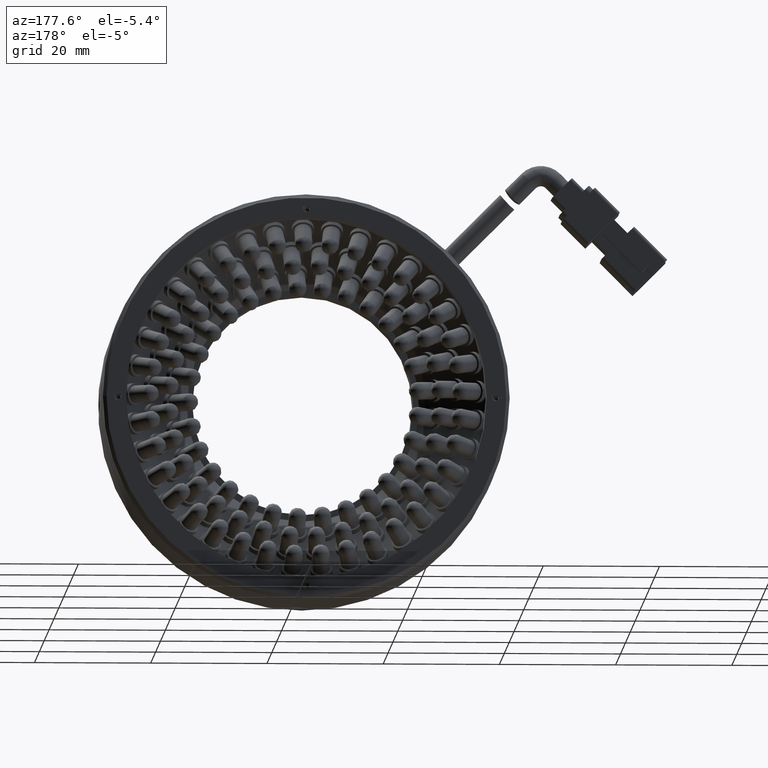
[diagram: clean part render]
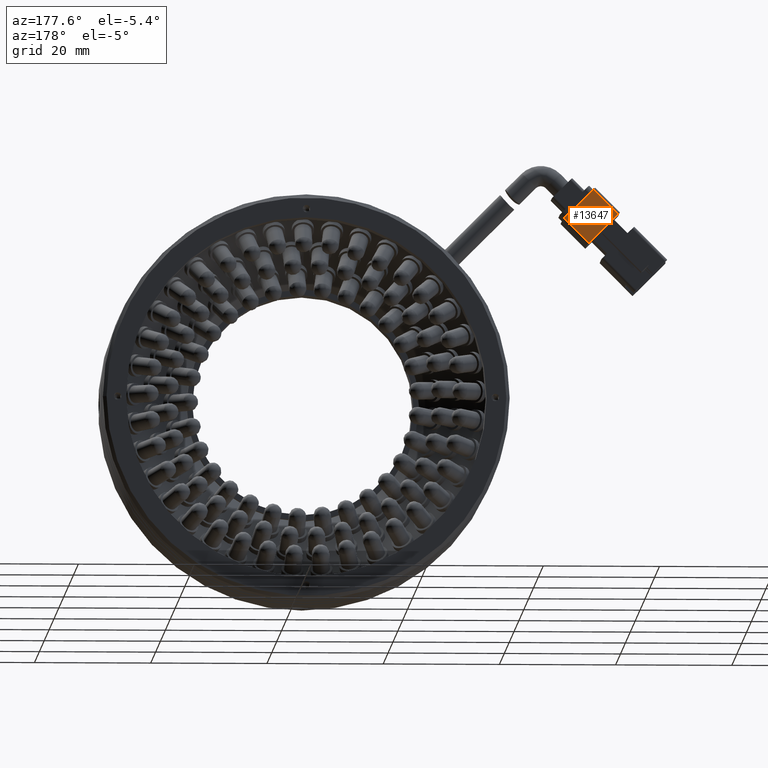
[diagram: same view with one face highlighted and labeled with its STEP entity id]
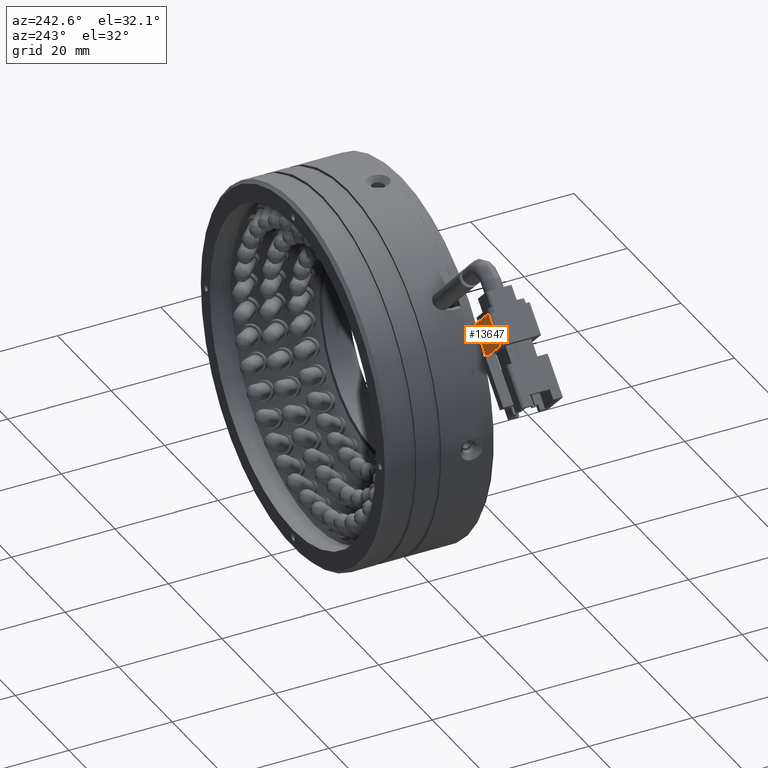
[diagram: same view with one face highlighted and labeled with its STEP entity id]
A machine part, auxiliary view. The second image highlights one B-rep face of the part: STEP entity #13647.
A second angle (auxiliary view) of the same face is appended — the face is thin or edge-on in the first view.
In plain terms, the highlighted planar face has unit normal (0, -1, -0).
Its self-contained STEP definition (entity closure, byte-faithful):
#2886 = EDGE_CURVE ( 'NONE', #16995, #65265, #22355, .T. ) ;
#5720 = DIRECTION ( 'NONE',  ( -0.7071067811865440200, -1.502354214089055400E-016, 0.7071067811865511300 ) ) ;
#6294 = FACE_OUTER_BOUND ( 'NONE', #29763, .T. ) ;
#7867 = LINE ( 'NONE', #59689, #43464 ) ;
#8014 = VECTOR ( 'NONE', #5720, 999.9999999999998900 ) ;
#13647 = ADVANCED_FACE ( 'NONE', ( #6294 ), #55900, .F. ) ;
#16995 = VERTEX_POINT ( 'NONE', #27875 ) ;
#20152 = ORIENTED_EDGE ( 'NONE', *, *, #56590, .F. ) ;
#20243 = VECTOR ( 'NONE', #50684, 999.9999999999998900 ) ;
#22355 = LINE ( 'NONE', #77663, #20243 ) ;
#22884 = DIRECTION ( 'NONE',  ( 1.914268495972222500E-016, -1.000000000000000000, -2.103812090809002500E-017 ) ) ;
#27875 = CARTESIAN_POINT ( 'NONE',  ( -51.85999231285638400, 5.307271335108692000, 27.93071785686889900 ) ) ;
#27967 = LINE ( 'NONE', #39403, #8014 ) ;
#29222 = ORIENTED_EDGE ( 'NONE', *, *, #2886, .F. ) ;
#29763 = EDGE_LOOP ( 'NONE', ( #37963, #20152, #29222, #62874 ) ) ;
#37963 = ORIENTED_EDGE ( 'NONE', *, *, #48914, .F. ) ;
#39403 = CARTESIAN_POINT ( 'NONE',  ( -52.56709909404289500, 5.307271335108692000, 37.12310601229403100 ) ) ;
#41244 = CARTESIAN_POINT ( 'NONE',  ( -52.56709909404290900, 5.307271335108692000, 37.12310601229401600 ) ) ;
#43464 = VECTOR ( 'NONE', #65810, 999.9999999999998900 ) ;
#46670 = VERTEX_POINT ( 'NONE', #76952 ) ;
#48637 = VECTOR ( 'NONE', #81398, 999.9999999999998900 ) ;
#48914 = EDGE_CURVE ( 'NONE', #75648, #46670, #68526, .T. ) ;
#48981 = CARTESIAN_POINT ( 'NONE',  ( -52.56709909404289500, 5.307271335108692000, 37.12310601229402400 ) ) ;
#50684 = DIRECTION ( 'NONE',  ( 0.7071067811865511300, 1.204830254938410100E-016, 0.7071067811865440200 ) ) ;
#55900 = PLANE ( 'NONE',  #74955 ) ;
#56590 = EDGE_CURVE ( 'NONE', #65265, #75648, #27967, .T. ) ;
#59689 = CARTESIAN_POINT ( 'NONE',  ( -51.85999231285637000, 5.307271335108692000, 27.93071785686889500 ) ) ;
#62874 = ORIENTED_EDGE ( 'NONE', *, *, #63846, .F. ) ;
#62918 = CARTESIAN_POINT ( 'NONE',  ( -52.56709909404290900, 5.307271335108692000, 37.12310601229401600 ) ) ;
#63846 = EDGE_CURVE ( 'NONE', #46670, #16995, #7867, .T. ) ;
#65265 = VERTEX_POINT ( 'NONE', #77345 ) ;
#65810 = DIRECTION ( 'NONE',  ( 0.7071067811865441300, 7.511771070445273300E-017, -0.7071067811865510100 ) ) ;
#68526 = LINE ( 'NONE', #41244, #48637 ) ;
#69655 = DIRECTION ( 'NONE',  ( -0.7071067811865511300, -1.204830254938410100E-016, -0.7071067811865440200 ) ) ;
#74955 = AXIS2_PLACEMENT_3D ( 'NONE', #62918, #22884, #69655 ) ;
#75648 = VERTEX_POINT ( 'NONE', #48981 ) ;
#76952 = CARTESIAN_POINT ( 'NONE',  ( -56.80973978116220000, 5.307271335108692000, 32.88046532517476100 ) ) ;
#77345 = CARTESIAN_POINT ( 'NONE',  ( -47.61735162573707200, 5.307271335108692900, 32.17335854398815800 ) ) ;
#77663 = CARTESIAN_POINT ( 'NONE',  ( -47.61735162573708600, 5.307271335108692900, 32.17335854398813700 ) ) ;
#81398 = DIRECTION ( 'NONE',  ( -0.7071067811865511300, -1.204830254938410100E-016, -0.7071067811865440200 ) ) ;